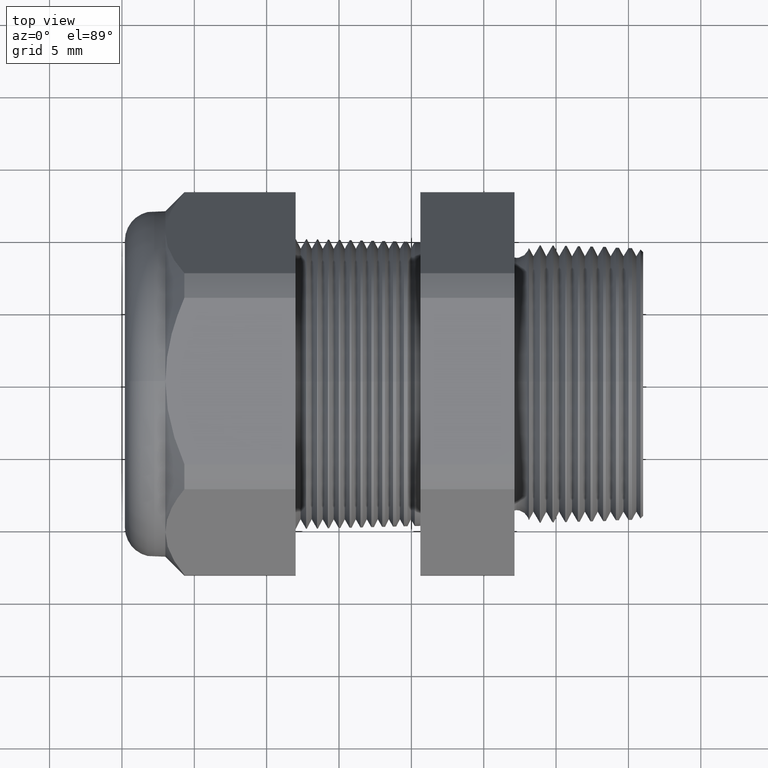
[diagram: clean part render]
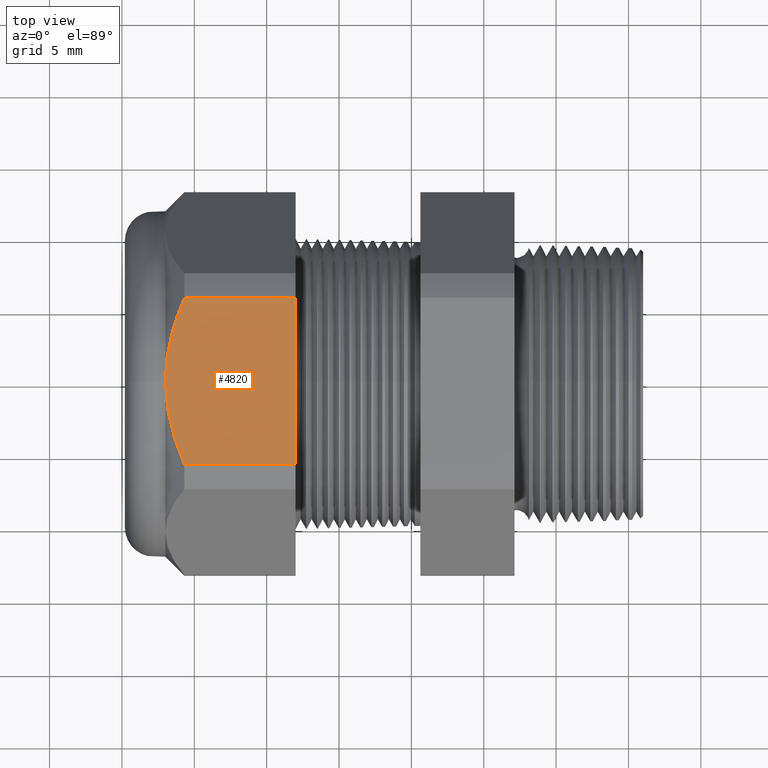
[diagram: same view with one face highlighted and labeled with its STEP entity id]
A machine part, top view. The second image highlights one B-rep face of the part: STEP entity #4820.
In plain terms, the highlighted planar face has unit normal (0, 0, 1).
Its self-contained STEP definition (entity closure, byte-faithful):
#318 = ORIENTED_EDGE ( 'NONE', *, *, #4781, .F. ) ;
#320 = ORIENTED_EDGE ( 'NONE', *, *, #321, .F. ) ;
#321 = EDGE_CURVE ( 'NONE', #4777, #4773, #1772, .T. ) ;
#466 = VERTEX_POINT ( 'NONE', #2005 ) ;
#1764 = DIRECTION ( 'NONE',  ( 0.0000000000000000000, -1.000000000000000000, 0.0000000000000000000 ) ) ;
#1765 = VECTOR ( 'NONE', #1764, 39.37007874015748100 ) ;
#1766 = CARTESIAN_POINT ( 'NONE',  ( -0.9054330708661418900, 0.3950000000000000200, 0.4699999999999999200 ) ) ;
#1772 = LINE ( 'NONE', #1766, #1765 ) ;
#2005 = CARTESIAN_POINT ( 'NONE',  ( -1.259763779527559400, 0.0000000000000000000, 0.4699999999999999200 ) ) ;
#3968 = DIRECTION ( 'NONE',  ( -1.000000000000000000, 0.0000000000000000000, 0.0000000000000000000 ) ) ;
#3969 = VECTOR ( 'NONE', #3968, 39.37007874015748100 ) ;
#3970 = CARTESIAN_POINT ( 'NONE',  ( 0.03999999999999984800, -0.2264307620443835300, 0.4699999999999997000 ) ) ;
#3971 = LINE ( 'NONE', #3970, #3969 ) ;
#3972 = CARTESIAN_POINT ( 'NONE',  ( -0.9054330708661418900, 0.2264307620443832800, 0.4699999999999999200 ) ) ;
#3977 = CARTESIAN_POINT ( 'NONE',  ( -1.208063779527559300, 0.2264307620443832800, 0.4699999999999999200 ) ) ;
#3980 = CARTESIAN_POINT ( 'NONE',  ( -0.9054330708661418900, -0.2264307620443835300, 0.4699999999999997000 ) ) ;
#3991 = CARTESIAN_POINT ( 'NONE',  ( -1.208063779527559100, -0.2264307620443834500, 0.4699999999999999200 ) ) ;
#4028 = CARTESIAN_POINT ( 'NONE',  ( -1.215800659726855800, -0.2086048696456210000, 0.4699999999999999700 ) ) ;
#4029 = CARTESIAN_POINT ( 'NONE',  ( -1.222949366997029100, -0.1904348960138968200, 0.4700000000000002000 ) ) ;
#4030 = CARTESIAN_POINT ( 'NONE',  ( -1.235712352585576200, -0.1532690879941744400, 0.4699999999999999200 ) ) ;
#4031 = CARTESIAN_POINT ( 'NONE',  ( -1.241231388637373100, -0.1345390626635395200, 0.4699999999999998600 ) ) ;
#4032 = CARTESIAN_POINT ( 'NONE',  ( -1.254778598172672700, -0.07783554612607082600, 0.4699999999999999200 ) ) ;
#4033 = CARTESIAN_POINT ( 'NONE',  ( -1.259763779527559400, -0.03934296915062175000, 0.4700000000000000300 ) ) ;
#4034 = CARTESIAN_POINT ( 'NONE',  ( -1.259763779527559400, 0.0000000000000000000, 0.4699999999999999200 ) ) ;
#4035 = LINE ( 'NONE', #4085, #4084 ) ;
#4036 = B_SPLINE_CURVE_WITH_KNOTS ( 'NONE', 3,
 ( #4034, #4033, #4032, #4031, #4030, #4029, #4028, #4087 ),
 .UNSPECIFIED., .F., .F.,
 ( 4, 2, 2, 4 ),
 ( 0.01501897965151429200, 0.01796263803772295300, 0.01943446723082728500, 0.02090629642393161700 ),
 .UNSPECIFIED. ) ;
#4073 = DIRECTION ( 'NONE',  ( -1.000000000000000000, 0.0000000000000000000, 0.0000000000000000000 ) ) ;
#4074 = CARTESIAN_POINT ( 'NONE',  ( -1.259763779527559400, 0.0000000000000000000, 0.4699999999999999200 ) ) ;
#4075 = CARTESIAN_POINT ( 'NONE',  ( -1.259763779527559600, 0.01964242875915825700, 0.4700000000000000300 ) ) ;
#4076 = CARTESIAN_POINT ( 'NONE',  ( -1.258517019735540900, 0.03924163778662364400, 0.4699999999999999700 ) ) ;
#4077 = CARTESIAN_POINT ( 'NONE',  ( -1.253749478914868700, 0.07782038235249987000, 0.4699999999999997500 ) ) ;
#4078 = CARTESIAN_POINT ( 'NONE',  ( -1.250231001418867600, 0.09688970369981497700, 0.4699999999999998600 ) ) ;
#4079 = CARTESIAN_POINT ( 'NONE',  ( -1.241202062721104900, 0.1346420459264781000, 0.4699999999999999700 ) ) ;
#4080 = CARTESIAN_POINT ( 'NONE',  ( -1.235692781244512700, 0.1533252955870069200, 0.4699999999999997500 ) ) ;
#4081 = CARTESIAN_POINT ( 'NONE',  ( -1.222974602953726500, 0.1903621927138393300, 0.4700000000000000300 ) ) ;
#4082 = CARTESIAN_POINT ( 'NONE',  ( -1.215800509309333100, 0.2086052162099337700, 0.4699999999999998600 ) ) ;
#4083 = CARTESIAN_POINT ( 'NONE',  ( -1.208063779527559300, 0.2264307620443832800, 0.4699999999999999200 ) ) ;
#4084 = VECTOR ( 'NONE', #4073, 39.37007874015748100 ) ;
#4085 = CARTESIAN_POINT ( 'NONE',  ( 0.03999999999999984800, 0.2264307620443832800, 0.4699999999999999200 ) ) ;
#4086 = B_SPLINE_CURVE_WITH_KNOTS ( 'NONE', 3,
 ( #4083, #4082, #4081, #4080, #4079, #4078, #4077, #4076, #4075, #4074 ),
 .UNSPECIFIED., .F., .F.,
 ( 4, 2, 2, 2, 4 ),
 ( 0.009140358755258091600, 0.01061001397932213900, 0.01207966920338618900, 0.01354932442745024200, 0.01501897965151429200 ),
 .UNSPECIFIED. ) ;
#4087 = CARTESIAN_POINT ( 'NONE',  ( -1.208063779527559100, -0.2264307620443834500, 0.4699999999999999200 ) ) ;
#4088 = DIRECTION ( 'NONE',  ( 1.000000000000000000, 0.0000000000000000000, 0.0000000000000000000 ) ) ;
#4089 = DIRECTION ( 'NONE',  ( 0.0000000000000000000, 0.0000000000000000000, 1.000000000000000000 ) ) ;
#4090 = CARTESIAN_POINT ( 'NONE',  ( 0.03999999999999984800, -0.2264307620443832800, 0.4699999999999999200 ) ) ;
#4091 = AXIS2_PLACEMENT_3D ( 'NONE', #4090, #4089, #4088 ) ;
#4092 = PLANE ( 'NONE',  #4091 ) ;
#4097 = FACE_OUTER_BOUND ( 'NONE', #4805, .T. ) ;
#4769 = VERTEX_POINT ( 'NONE', #3991 ) ;
#4773 = VERTEX_POINT ( 'NONE', #3980 ) ;
#4775 = ORIENTED_EDGE ( 'NONE', *, *, #4802, .T. ) ;
#4776 = VERTEX_POINT ( 'NONE', #3977 ) ;
#4777 = VERTEX_POINT ( 'NONE', #3972 ) ;
#4781 = EDGE_CURVE ( 'NONE', #4773, #4769, #3971, .T. ) ;
#4799 = EDGE_CURVE ( 'NONE', #466, #4769, #4036, .T. ) ;
#4801 = ORIENTED_EDGE ( 'NONE', *, *, #4799, .T. ) ;
#4802 = EDGE_CURVE ( 'NONE', #4776, #466, #4086, .T. ) ;
#4803 = ORIENTED_EDGE ( 'NONE', *, *, #4804, .T. ) ;
#4804 = EDGE_CURVE ( 'NONE', #4777, #4776, #4035, .T. ) ;
#4805 = EDGE_LOOP ( 'NONE', ( #4803, #4775, #4801, #318, #320 ) ) ;
#4820 = ADVANCED_FACE ( 'NONE', ( #4097 ), #4092, .T. ) ;